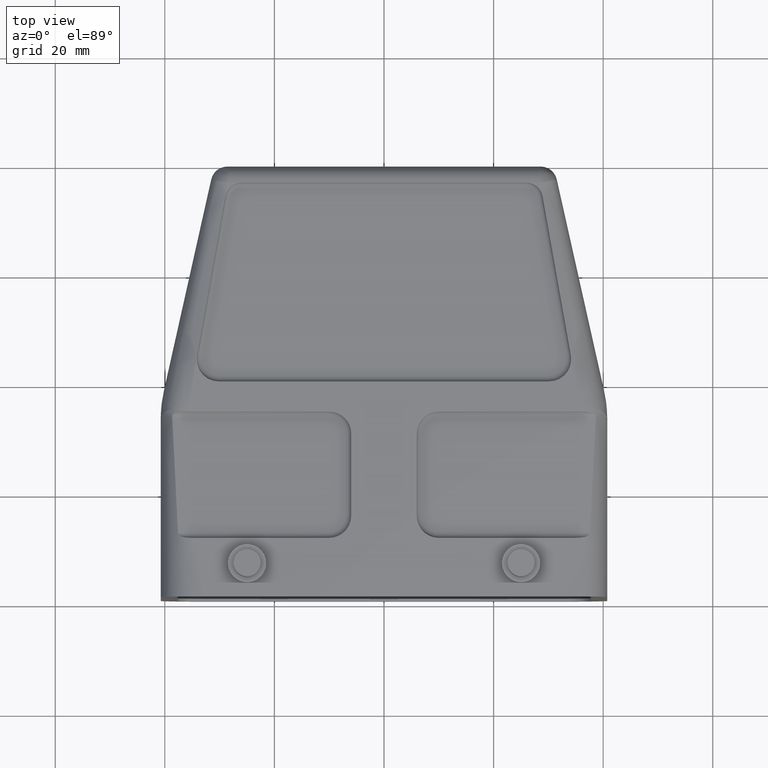
[diagram: clean part render]
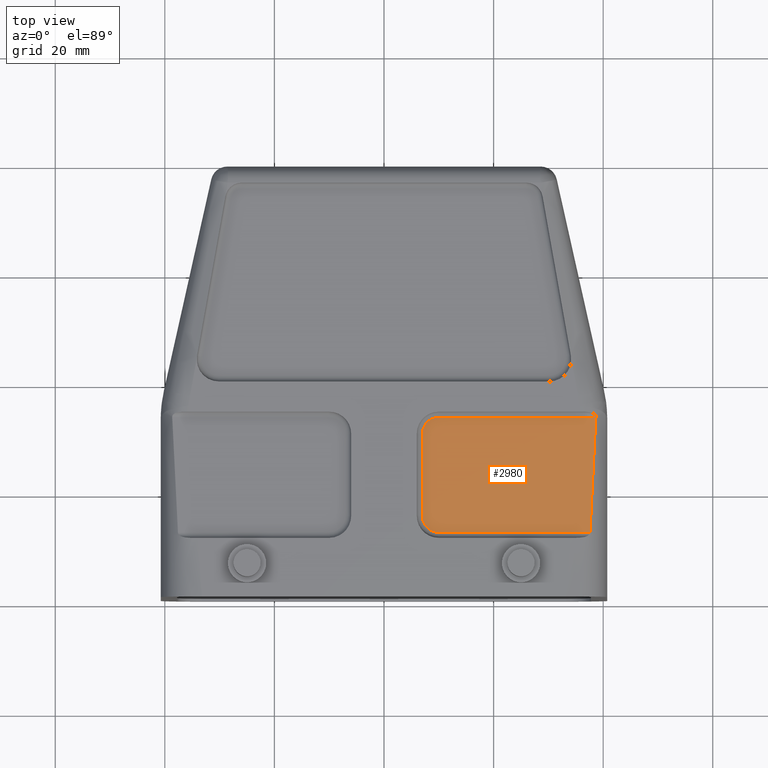
[diagram: same view with one face highlighted and labeled with its STEP entity id]
A machine part, top view. The second image highlights one B-rep face of the part: STEP entity #2980.
In plain terms, the highlighted planar face has unit normal (0, 0, 1).
Its self-contained STEP definition (entity closure, byte-faithful):
#431=DIRECTION('',(1.E0,-6.362846662336E-14,-6.942076563177E-13));
#432=VECTOR('',#431,2.864350209809E1);
#433=CARTESIAN_POINT('',(1.E1,-6.55E0,2.7E1));
#434=LINE('',#433,#432);
#452=CARTESIAN_POINT('',(3.760149286989E1,-2.755E1,2.699999999998E1));
#453=CARTESIAN_POINT('',(3.772273925070E1,-2.517438693906E1,2.699999999998E1));
#454=CARTESIAN_POINT('',(3.796179668023E1,-2.045135043898E1,2.700000000001E1));
#455=CARTESIAN_POINT('',(3.830952670426E1,-1.345072676266E1,2.700000000001E1));
#456=CARTESIAN_POINT('',(3.853356949914E1,-8.840790215558E0,2.699999999998E1));
#457=CARTESIAN_POINT('',(3.864350209809E1,-6.550000000002E0,2.699999999998E1));
#459=CARTESIAN_POINT('',(1.E1,-2.455E1,2.7E1));
#460=DIRECTION('',(0.E0,0.E0,1.E0));
#461=DIRECTION('',(-1.E0,0.E0,0.E0));
#462=AXIS2_PLACEMENT_3D('',#459,#460,#461);
#464=CARTESIAN_POINT('',(1.E1,-9.55E0,2.7E1));
#465=DIRECTION('',(0.E0,0.E0,1.E0));
#466=DIRECTION('',(0.E0,1.E0,0.E0));
#467=AXIS2_PLACEMENT_3D('',#464,#465,#466);
#1769=DIRECTION('',(-1.E0,1.208629605695E-13,8.787342191780E-13));
#1770=VECTOR('',#1769,2.760149286989E1);
#1771=CARTESIAN_POINT('',(3.760149286989E1,-2.755E1,2.699999999998E1));
#1772=LINE('',#1771,#1770);
#1783=DIRECTION('',(-9.728514290449E-14,1.E0,0.E0));
#1784=VECTOR('',#1783,1.5E1);
#1785=CARTESIAN_POINT('',(7.000000000001E0,-2.455E1,2.7E1));
#1786=LINE('',#1785,#1784);
#2244=CARTESIAN_POINT('',(1.E1,-6.55E0,2.7E1));
#2245=CARTESIAN_POINT('',(3.864350209809E1,-6.550000000002E0,2.699999999998E1));
#2246=VERTEX_POINT('',#2244);
#2247=VERTEX_POINT('',#2245);
#2248=VERTEX_POINT('',#452);
#2249=CARTESIAN_POINT('',(9.999999999999E0,-2.755E1,2.7E1));
#2250=VERTEX_POINT('',#2249);
#2251=CARTESIAN_POINT('',(7.000000000004E0,-2.455E1,2.7E1));
#2252=VERTEX_POINT('',#2251);
#2253=CARTESIAN_POINT('',(7.E0,-9.55E0,2.7E1));
#2254=VERTEX_POINT('',#2253);
#2962=CARTESIAN_POINT('',(2.282175104902E1,-1.705E1,2.7E1));
#2963=DIRECTION('',(0.E0,0.E0,1.E0));
#2964=DIRECTION('',(1.E0,0.E0,0.E0));
#2965=AXIS2_PLACEMENT_3D('',#2962,#2963,#2964);
#2966=PLANE('',#2965);
#2967=ORIENTED_EDGE('',*,*,#2952,.T.);
#2969=ORIENTED_EDGE('',*,*,#2968,.F.);
#2971=ORIENTED_EDGE('',*,*,#2970,.T.);
#2973=ORIENTED_EDGE('',*,*,#2972,.F.);
#2975=ORIENTED_EDGE('',*,*,#2974,.T.);
#2977=ORIENTED_EDGE('',*,*,#2976,.F.);
#2978=EDGE_LOOP('',(#2967,#2969,#2971,#2973,#2975,#2977));
#2979=FACE_OUTER_BOUND('',#2978,.F.);
#2980=ADVANCED_FACE('',(#2979),#2966,.T.);
#458=B_SPLINE_CURVE_WITH_KNOTS('',3,(#452,#453,#454,#455,#456,#457),
.UNSPECIFIED.,.F.,.F.,(4,1,1,4),(0.E0,3.333333333333E-1,6.666666666667E-1,1.E0),
.UNSPECIFIED.);
#463=CIRCLE('',#462,2.999999999996E0);
#468=CIRCLE('',#467,3.000000000001E0);
#2952=EDGE_CURVE('',#2246,#2247,#434,.T.);
#2968=EDGE_CURVE('',#2248,#2247,#458,.T.);
#2970=EDGE_CURVE('',#2248,#2250,#1772,.T.);
#2972=EDGE_CURVE('',#2252,#2250,#463,.T.);
#2974=EDGE_CURVE('',#2252,#2254,#1786,.T.);
#2976=EDGE_CURVE('',#2246,#2254,#468,.T.);